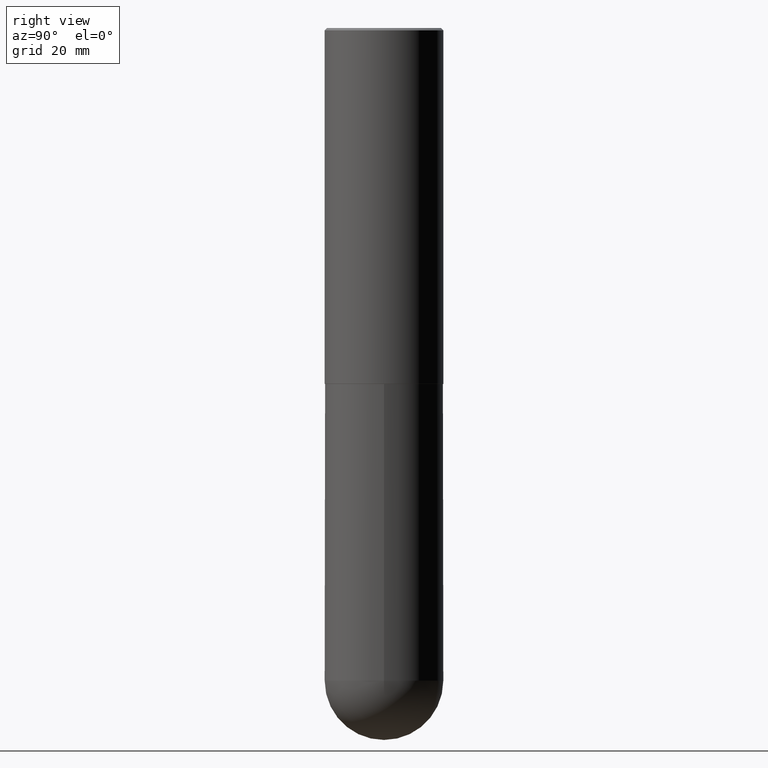
[diagram: clean part render]
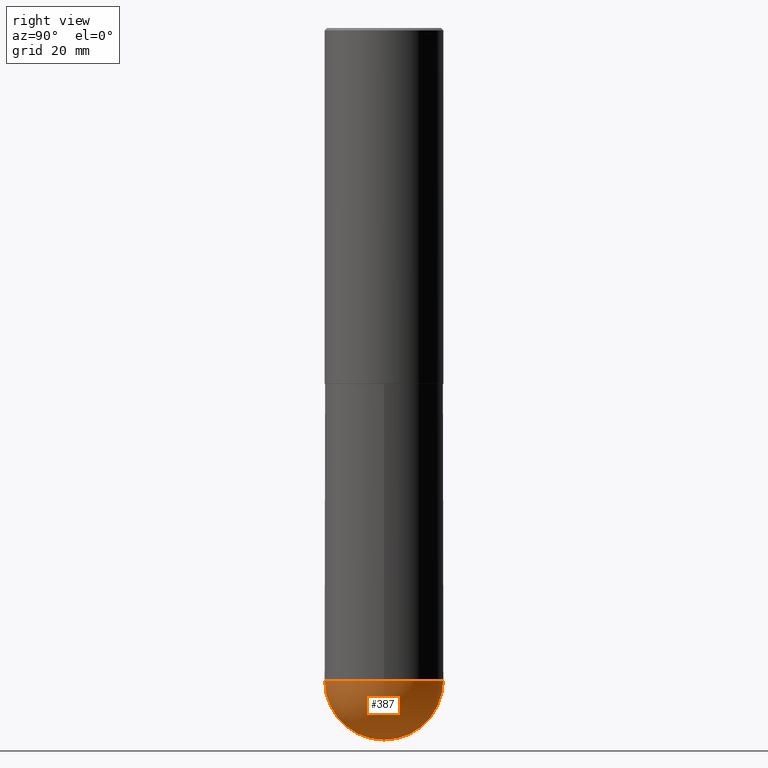
[diagram: same view with one face highlighted and labeled with its STEP entity id]
A machine part, right view. The second image highlights one B-rep face of the part: STEP entity #387.
In plain terms, the highlighted spherical surface has radius 12.7 mm.
Its self-contained STEP definition (entity closure, byte-faithful):
#1 = AXIS2_PLACEMENT_3D ( 'NONE', #324, #161, #390 ) ;
#7 = CARTESIAN_POINT ( 'NONE',  ( 1.345007843401825128E-28, -1.920314736363730603E-14, -5.500000000000000888 ) ) ;
#24 = DIRECTION ( 'NONE',  ( -1.000000000000000000, 6.982962677686265922E-15, -4.883557194083112901E-29 ) ) ;
#35 = DIRECTION ( 'NONE',  ( 1.000000000000000000, -6.982962677686265922E-15, 4.883557194083112340E-29 ) ) ;
#59 = AXIS2_PLACEMENT_3D ( 'NONE', #143, #24, #180 ) ;
#68 = ORIENTED_EDGE ( 'NONE', *, *, #117, .T. ) ;
#69 = CARTESIAN_POINT ( 'NONE',  ( 1.345007843401825128E-28, -1.920314736363730603E-14, -5.500000000000000888 ) ) ;
#76 = EDGE_CURVE ( 'NONE', #87, #371, #235, .T. ) ;
#87 = VERTEX_POINT ( 'NONE', #196 ) ;
#93 = EDGE_CURVE ( 'NONE', #371, #223, #150, .T. ) ;
#99 = DIRECTION ( 'NONE',  ( 6.982962677686265922E-15, 1.000000000000000000, 0.000000000000000000 ) ) ;
#117 = EDGE_CURVE ( 'NONE', #306, #223, #259, .T. ) ;
#143 = CARTESIAN_POINT ( 'NONE',  ( 1.311895865610436840E-28, -1.967732973177735475E-14, -5.500000000000000888 ) ) ;
#150 = CIRCLE ( 'NONE', #287, 0.5000000000000000000 ) ;
#161 = DIRECTION ( 'NONE',  ( -1.000000000000000000, 7.105427357601001070E-15, -4.926315508542082329E-29 ) ) ;
#163 = FACE_OUTER_BOUND ( 'NONE', #265, .T. ) ;
#179 = CARTESIAN_POINT ( 'NONE',  ( 1.436307221642642309E-28, -2.139245423122024710E-14, -6.000000000000001776 ) ) ;
#180 = DIRECTION ( 'NONE',  ( 6.982962677686265922E-15, 1.000000000000000000, -4.370956789862816416E-15 ) ) ;
#182 = CIRCLE ( 'NONE', #1, 0.5000000000000005551 ) ;
#191 = DIRECTION ( 'NONE',  ( -2.445468806185136597E-29, 3.491481338843145583E-15, 1.000000000000000000 ) ) ;
#196 = CARTESIAN_POINT ( 'NONE',  ( -3.552713678800369978E-15, -0.5000000000000196509, -5.499999999999999112 ) ) ;
#212 = SPHERICAL_SURFACE ( 'NONE', #59, 0.5000000000000005551 ) ;
#223 = VERTEX_POINT ( 'NONE', #251 ) ;
#235 = CIRCLE ( 'NONE', #341, 0.5000000000000000000 ) ;
#239 = ORIENTED_EDGE ( 'NONE', *, *, #93, .F. ) ;
#251 = CARTESIAN_POINT ( 'NONE',  ( 3.491481338843267462E-15, 0.4999999999999808487, -5.500000000000002665 ) ) ;
#256 = DIRECTION ( 'NONE',  ( -2.445468806185136597E-29, 3.491481338843145583E-15, 1.000000000000000000 ) ) ;
#258 = CARTESIAN_POINT ( 'NONE',  ( 0.5000000000000000000, -1.833027702892651007E-14, -5.500000000000000888 ) ) ;
#259 = CIRCLE ( 'NONE', #267, 0.5000000000000005551 ) ;
#265 = EDGE_LOOP ( 'NONE', ( #375, #68, #239, #322 ) ) ;
#267 = AXIS2_PLACEMENT_3D ( 'NONE', #329, #35, #99 ) ;
#287 = AXIS2_PLACEMENT_3D ( 'NONE', #7, #191, #358 ) ;
#306 = VERTEX_POINT ( 'NONE', #179 ) ;
#322 = ORIENTED_EDGE ( 'NONE', *, *, #76, .F. ) ;
#324 = CARTESIAN_POINT ( 'NONE',  ( 1.311895865610436840E-28, -1.967732973177735475E-14, -5.500000000000000888 ) ) ;
#329 = CARTESIAN_POINT ( 'NONE',  ( 1.311895865610436840E-28, -1.967732973177735475E-14, -5.500000000000000888 ) ) ;
#341 = AXIS2_PLACEMENT_3D ( 'NONE', #69, #256, #392 ) ;
#358 = DIRECTION ( 'NONE',  ( 1.000000000000000000, -6.982962677686270655E-15, 0.000000000000000000 ) ) ;
#371 = VERTEX_POINT ( 'NONE', #258 ) ;
#375 = ORIENTED_EDGE ( 'NONE', *, *, #382, .F. ) ;
#382 = EDGE_CURVE ( 'NONE', #306, #87, #182, .T. ) ;
#387 = ADVANCED_FACE ( 'NONE', ( #163 ), #212, .T. ) ;
#390 = DIRECTION ( 'NONE',  ( -7.105427357601000281E-15, -1.000000000000000000, 0.000000000000000000 ) ) ;
#392 = DIRECTION ( 'NONE',  ( 1.000000000000000000, -6.982962677686270655E-15, 0.000000000000000000 ) ) ;